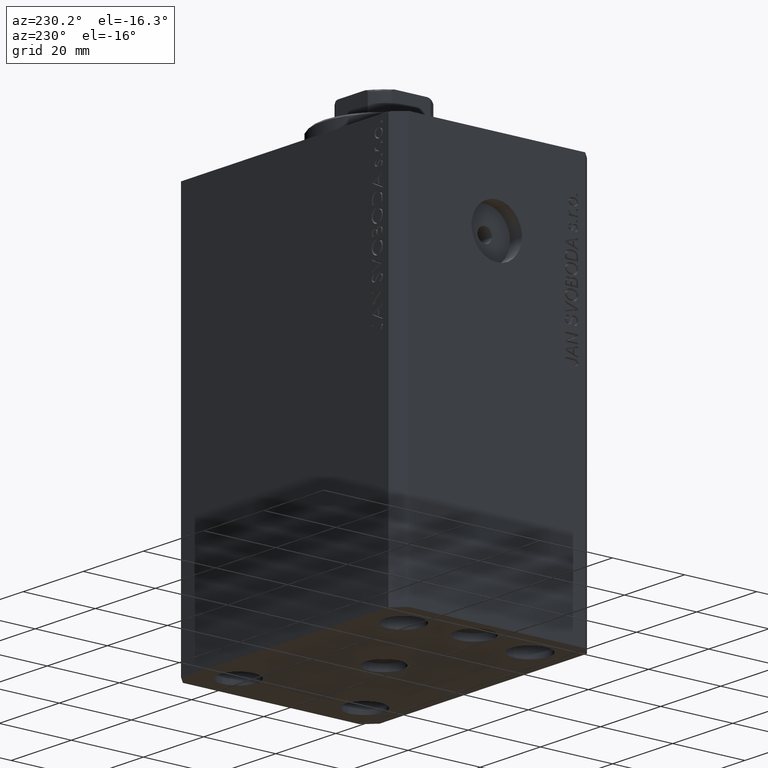
[diagram: clean part render]
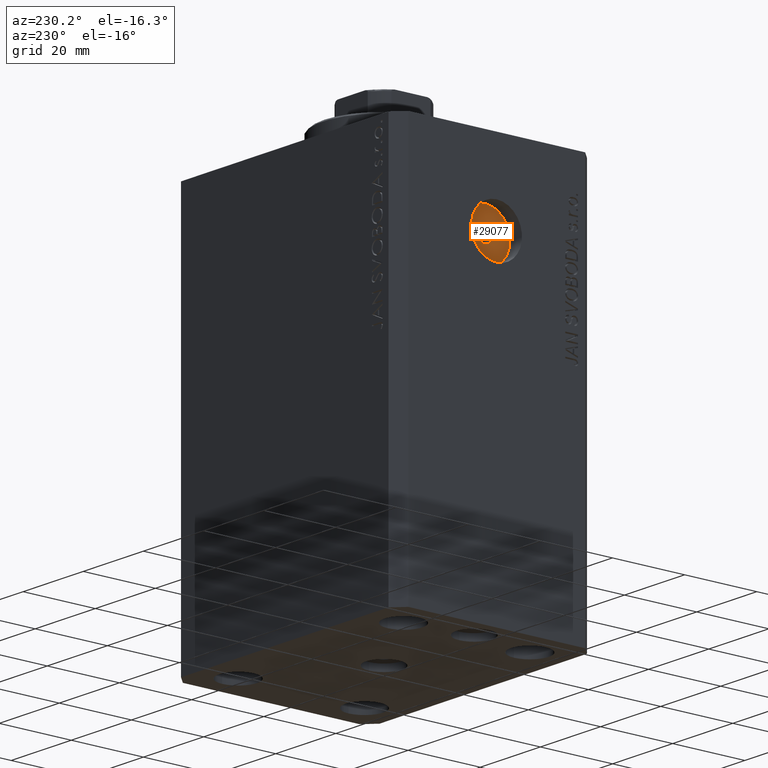
[diagram: same view with one face highlighted and labeled with its STEP entity id]
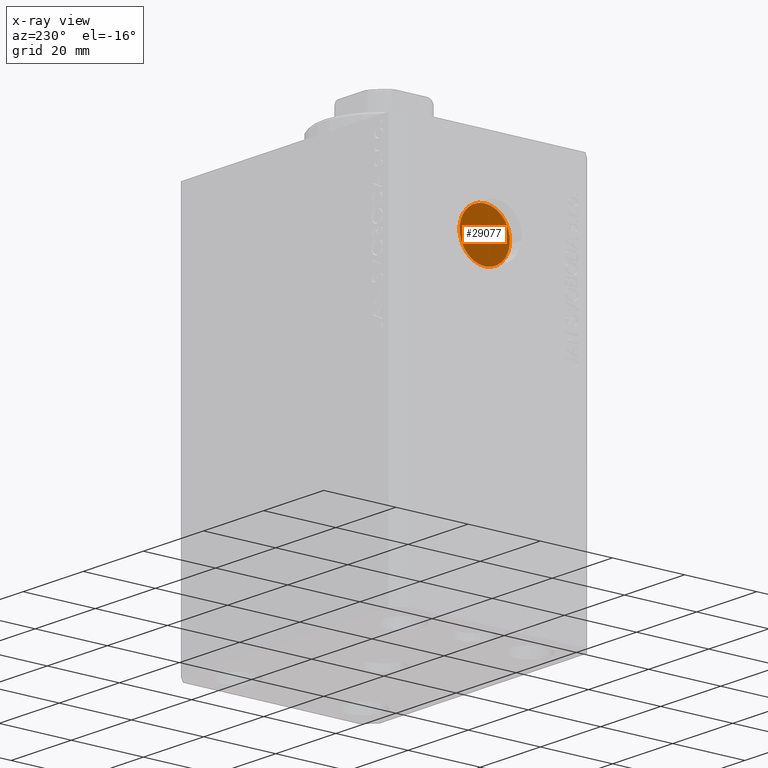
[diagram: x-ray of the same camera — body ghosted, the highlighted face saturated]
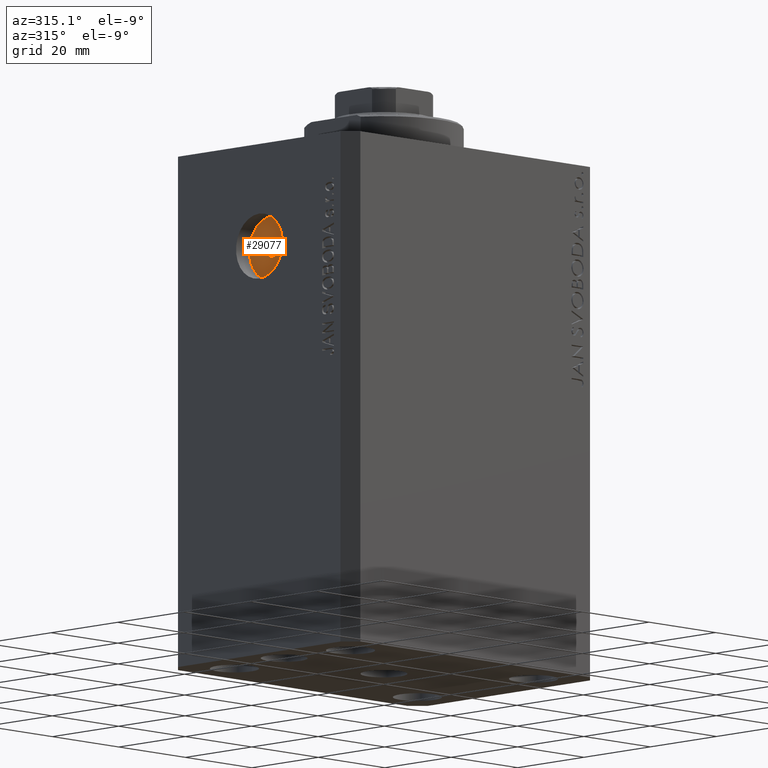
[diagram: same view with one face highlighted and labeled with its STEP entity id]
A machine part, auxiliary view. The second image highlights one B-rep face of the part: STEP entity #29077.
The next image is the same camera in x-ray: the body ghosted, the highlighted face saturated — about 0% of this face is hidden behind the body in this view.
A second angle (auxiliary view) of the same face is appended — the face is thin or edge-on in the first view.
In plain terms, the highlighted planar face has unit normal (-1, 0, 0).
Its self-contained STEP definition (entity closure, byte-faithful):
#2893 = ORIENTED_EDGE ( 'NONE', *, *, #8099, .T. ) ;
#3659 = DIRECTION ( 'NONE',  ( -1.000000000000000000, 0.000000000000000000, 0.000000000000000000 ) ) ;
#4887 = ORIENTED_EDGE ( 'NONE', *, *, #17121, .F. ) ;
#6153 = CARTESIAN_POINT ( 'NONE',  ( -33.49999999999998579, 8.572527594031474176E-16, -28.99999999999999645 ) ) ;
#6646 = DIRECTION ( 'NONE',  ( -1.000000000000000000, 0.000000000000000000, 0.000000000000000000 ) ) ;
#6876 = CARTESIAN_POINT ( 'NONE',  ( -33.49999999999998579, 0.000000000000000000, -22.00000000000000000 ) ) ;
#8099 = EDGE_CURVE ( 'NONE', #11509, #11753, #16513, .T. ) ;
#9427 = FACE_OUTER_BOUND ( 'NONE', #28803, .T. ) ;
#10293 = VERTEX_POINT ( 'NONE', #34147 ) ;
#10434 = DIRECTION ( 'NONE',  ( 0.000000000000000000, 0.000000000000000000, 1.000000000000000000 ) ) ;
#11509 = VERTEX_POINT ( 'NONE', #40248 ) ;
#11753 = VERTEX_POINT ( 'NONE', #6153 ) ;
#12770 = ORIENTED_EDGE ( 'NONE', *, *, #32248, .F. ) ;
#13263 = DIRECTION ( 'NONE',  ( -1.000000000000000000, 0.000000000000000000, 0.000000000000000000 ) ) ;
#13494 = CARTESIAN_POINT ( 'NONE',  ( -33.49999999999998579, 0.000000000000000000, -22.00000000000000000 ) ) ;
#14642 = AXIS2_PLACEMENT_3D ( 'NONE', #23190, #13263, #33763 ) ;
#14678 = CIRCLE ( 'NONE', #39858, 6.999999999999999112 ) ;
#14697 = DIRECTION ( 'NONE',  ( -1.000000000000000000, 0.000000000000000000, 0.000000000000000000 ) ) ;
#16151 = CIRCLE ( 'NONE', #27648, 1.999999999999998224 ) ;
#16513 = CIRCLE ( 'NONE', #35236, 6.999999999999999112 ) ;
#17121 = EDGE_CURVE ( 'NONE', #33659, #10293, #27581, .T. ) ;
#19587 = FACE_BOUND ( 'NONE', #22864, .T. ) ;
#20049 = DIRECTION ( 'NONE',  ( -1.000000000000000000, 0.000000000000000000, 0.000000000000000000 ) ) ;
#22536 = ORIENTED_EDGE ( 'NONE', *, *, #41686, .T. ) ;
#22864 = EDGE_LOOP ( 'NONE', ( #12770, #4887 ) ) ;
#23190 = CARTESIAN_POINT ( 'NONE',  ( -33.49999999999998579, 0.000000000000000000, -22.00000000000000000 ) ) ;
#24835 = CARTESIAN_POINT ( 'NONE',  ( -33.49999999999998579, 0.000000000000000000, -22.00000000000000000 ) ) ;
#27508 = CARTESIAN_POINT ( 'NONE',  ( -33.49999999999998579, 2.449293598294706414E-16, -23.99999999999999645 ) ) ;
#27581 = CIRCLE ( 'NONE', #30525, 1.999999999999998224 ) ;
#27648 = AXIS2_PLACEMENT_3D ( 'NONE', #6876, #6646, #30338 ) ;
#28803 = EDGE_LOOP ( 'NONE', ( #2893, #22536 ) ) ;
#29077 = ADVANCED_FACE ( 'NONE', ( #19587, #9427 ), #40763, .T. ) ;
#30338 = DIRECTION ( 'NONE',  ( 0.000000000000000000, 0.000000000000000000, 1.000000000000000000 ) ) ;
#30525 = AXIS2_PLACEMENT_3D ( 'NONE', #13494, #20049, #33775 ) ;
#31634 = CARTESIAN_POINT ( 'NONE',  ( -33.49999999999998579, 0.000000000000000000, -22.00000000000000000 ) ) ;
#32248 = EDGE_CURVE ( 'NONE', #10293, #33659, #16151, .T. ) ;
#33659 = VERTEX_POINT ( 'NONE', #27508 ) ;
#33763 = DIRECTION ( 'NONE',  ( 0.000000000000000000, 0.000000000000000000, 1.000000000000000000 ) ) ;
#33775 = DIRECTION ( 'NONE',  ( 0.000000000000000000, 0.000000000000000000, 1.000000000000000000 ) ) ;
#34147 = CARTESIAN_POINT ( 'NONE',  ( -33.49999999999998579, 0.000000000000000000, -20.00000000000000000 ) ) ;
#34737 = DIRECTION ( 'NONE',  ( 0.000000000000000000, 0.000000000000000000, 1.000000000000000000 ) ) ;
#35236 = AXIS2_PLACEMENT_3D ( 'NONE', #31634, #3659, #10434 ) ;
#39858 = AXIS2_PLACEMENT_3D ( 'NONE', #24835, #14697, #34737 ) ;
#40248 = CARTESIAN_POINT ( 'NONE',  ( -33.49999999999998579, 0.000000000000000000, -15.00000000000000000 ) ) ;
#40763 = PLANE ( 'NONE',  #14642 ) ;
#41686 = EDGE_CURVE ( 'NONE', #11753, #11509, #14678, .T. ) ;